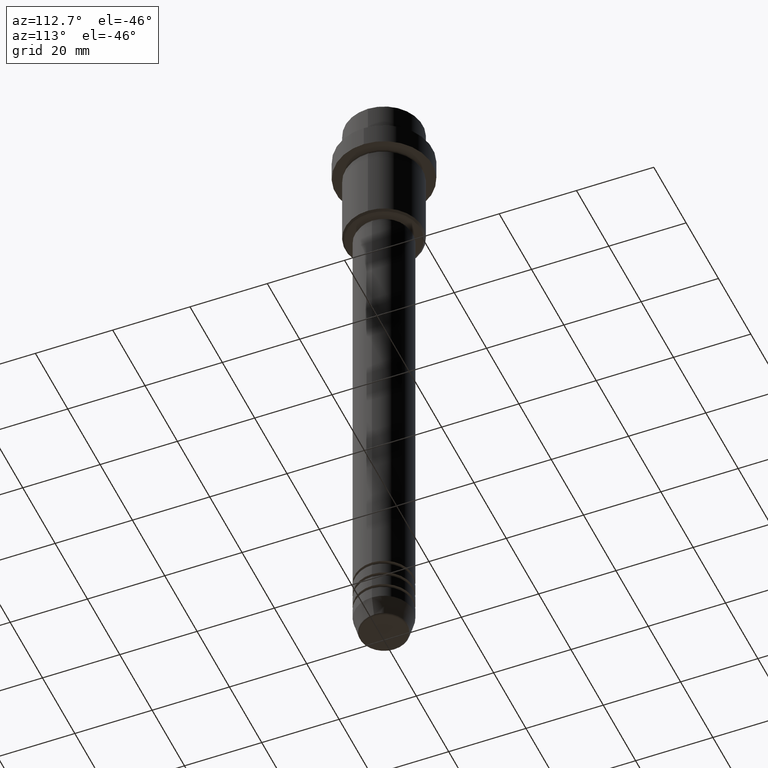
[diagram: clean part render]
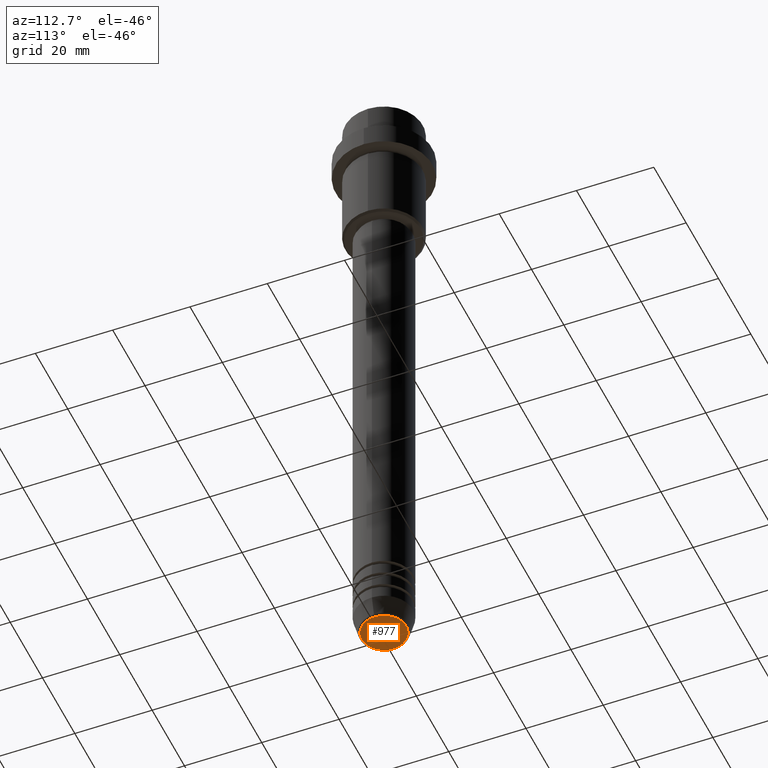
[diagram: same view with one face highlighted and labeled with its STEP entity id]
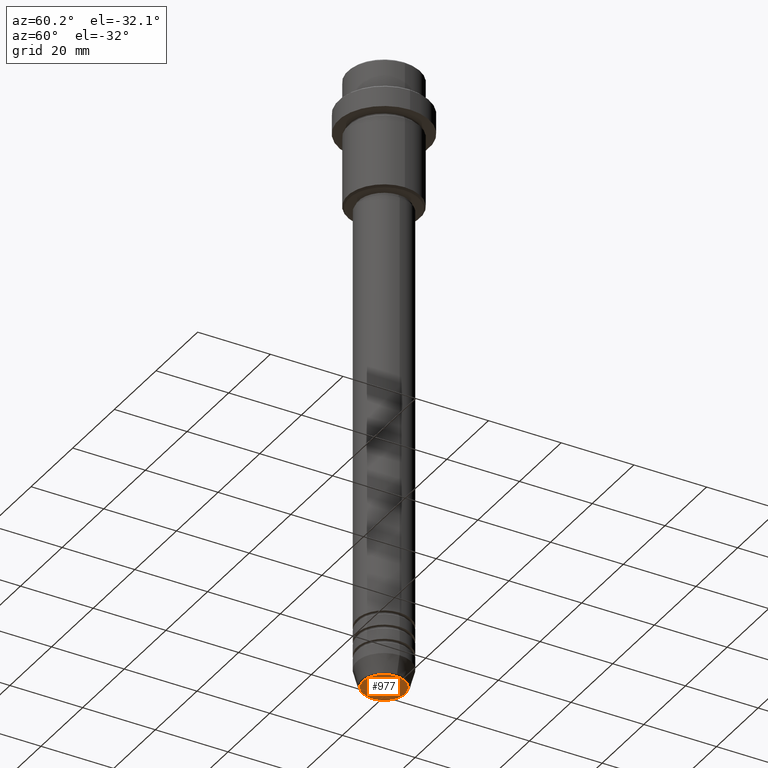
[diagram: same view with one face highlighted and labeled with its STEP entity id]
A machine part, auxiliary view. The second image highlights one B-rep face of the part: STEP entity #977.
A second angle (auxiliary view) of the same face is appended — the face is thin or edge-on in the first view.
In plain terms, the highlighted planar face has unit normal (0, -0, 1).
Its self-contained STEP definition (entity closure, byte-faithful):
#10 = EDGE_CURVE ( 'NONE', #721, #1129, #1050, .T. ) ;
#134 = AXIS2_PLACEMENT_3D ( 'NONE', #692, #902, #1225 ) ;
#298 = EDGE_CURVE ( 'NONE', #1129, #721, #1072, .T. ) ;
#310 = EDGE_LOOP ( 'NONE', ( #496, #1314 ) ) ;
#430 = AXIS2_PLACEMENT_3D ( 'NONE', #758, #1193, #1212 ) ;
#478 = PLANE ( 'NONE',  #134 ) ;
#496 = ORIENTED_EDGE ( 'NONE', *, *, #298, .T. ) ;
#512 = DIRECTION ( 'NONE',  ( 1.000000000000000000, 0.000000000000000000, 0.000000000000000000 ) ) ;
#619 = CARTESIAN_POINT ( 'NONE',  ( -5.776590543854905668, 7.370012612361443628E-16, -170.9999999999999716 ) ) ;
#669 = AXIS2_PLACEMENT_3D ( 'NONE', #1279, #1058, #512 ) ;
#679 = FACE_OUTER_BOUND ( 'NONE', #310, .T. ) ;
#692 = CARTESIAN_POINT ( 'NONE',  ( 0.000000000000000000, 0.000000000000000000, -170.9999999999999716 ) ) ;
#721 = VERTEX_POINT ( 'NONE', #619 ) ;
#758 = CARTESIAN_POINT ( 'NONE',  ( 0.000000000000000000, 0.000000000000000000, -170.9999999999999716 ) ) ;
#902 = DIRECTION ( 'NONE',  ( 0.000000000000000000, -0.000000000000000000, 1.000000000000000000 ) ) ;
#932 = CARTESIAN_POINT ( 'NONE',  ( 5.776590543854905668, 0.000000000000000000, -170.9999999999999716 ) ) ;
#977 = ADVANCED_FACE ( 'NONE', ( #679 ), #478, .F. ) ;
#1050 = CIRCLE ( 'NONE', #430, 5.776590543854905668 ) ;
#1058 = DIRECTION ( 'NONE',  ( 0.000000000000000000, 0.000000000000000000, -1.000000000000000000 ) ) ;
#1072 = CIRCLE ( 'NONE', #669, 5.776590543854905668 ) ;
#1129 = VERTEX_POINT ( 'NONE', #932 ) ;
#1193 = DIRECTION ( 'NONE',  ( 0.000000000000000000, 0.000000000000000000, -1.000000000000000000 ) ) ;
#1212 = DIRECTION ( 'NONE',  ( 1.000000000000000000, 0.000000000000000000, 0.000000000000000000 ) ) ;
#1225 = DIRECTION ( 'NONE',  ( 1.000000000000000000, 0.000000000000000000, 0.000000000000000000 ) ) ;
#1279 = CARTESIAN_POINT ( 'NONE',  ( 0.000000000000000000, 0.000000000000000000, -170.9999999999999716 ) ) ;
#1314 = ORIENTED_EDGE ( 'NONE', *, *, #10, .T. ) ;